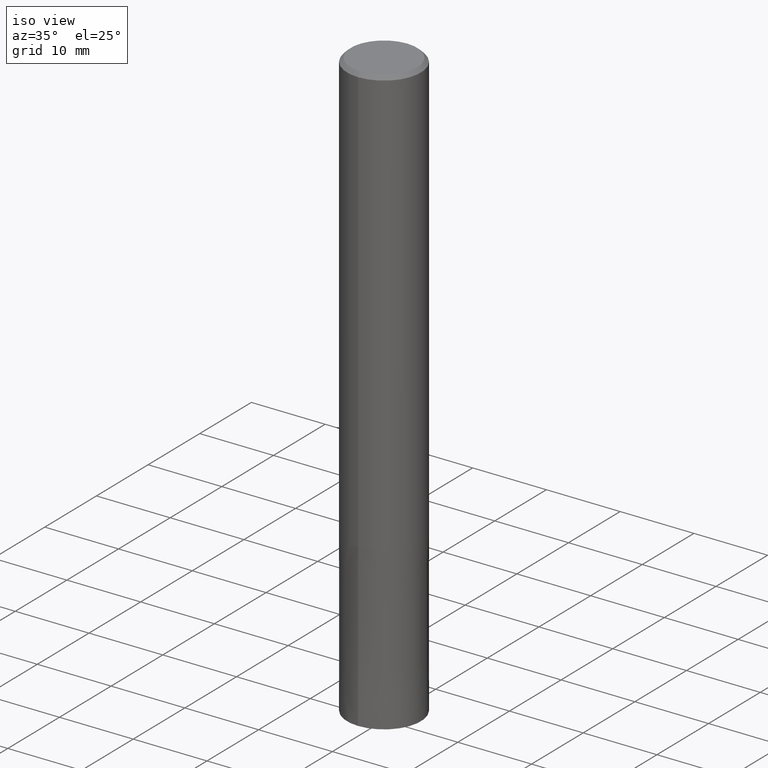
[diagram: clean part render]
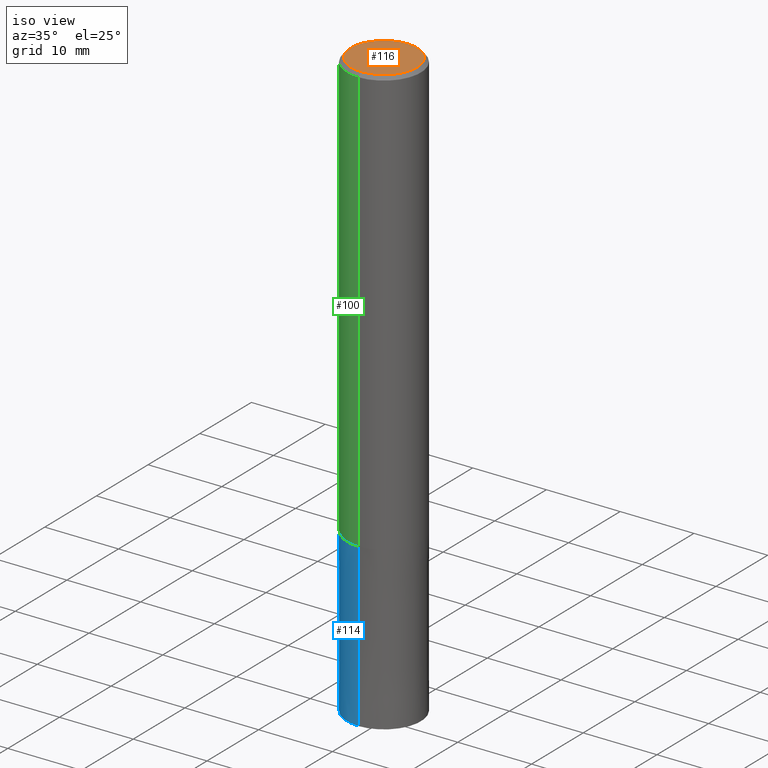
[diagram: same view with three faces highlighted in distinct colors, each labeled with its STEP entity id]
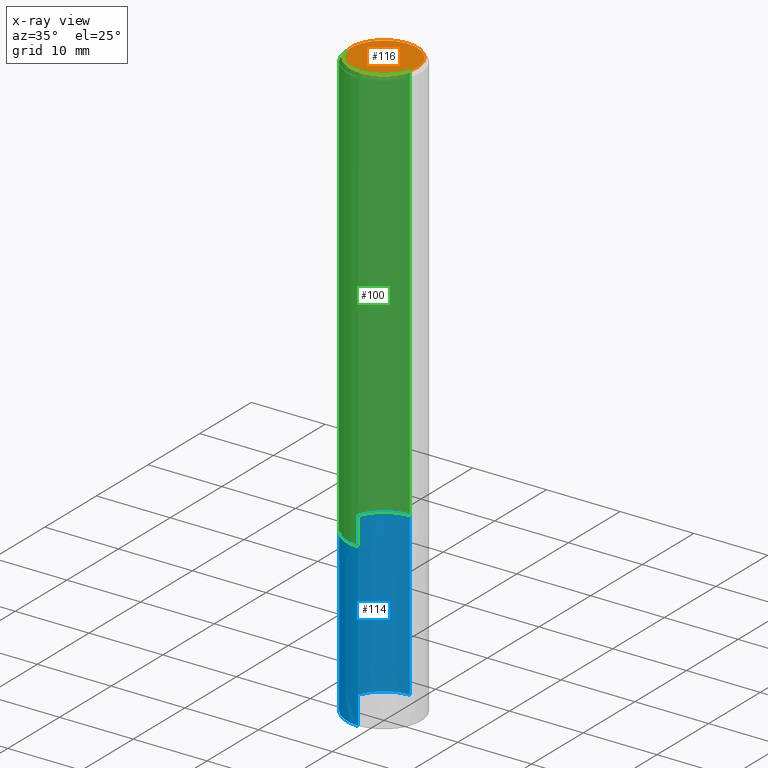
[diagram: x-ray of the same camera — body ghosted, the three highlighted faces saturated]
A machine part, iso view with three faces highlighted in distinct colors.
The next image is the same camera in x-ray (body ghosted, the three faces saturated) — at least one of them is partly hidden behind the body in this view.
Their STEP definitions:

[orange] entity #116 — the highlighted planar face has unit normal (-0, 0, 1).
#66=EDGE_CURVE('',#104,#106,#154,.T.);
#104=VERTEX_POINT('',#196);
#106=VERTEX_POINT('',#198);
#116=ADVANCED_FACE('',(#210),#211,.T.);
#130=EDGE_CURVE('',#106,#104,#228,.T.);
#154=CIRCLE('',#248,4.5);
#196=CARTESIAN_POINT('',(0.0,4.5,0.0));
#198=CARTESIAN_POINT('',(5.5107285922007E-016,-4.5,0.0));
#210=FACE_OUTER_BOUND('',#318,.T.);
#211=PLANE('',#319);
#228=CIRCLE('',#337,4.5);
#248=AXIS2_PLACEMENT_3D('',#344,#345,#346);
#318=EDGE_LOOP('',(#410,#411));
#319=AXIS2_PLACEMENT_3D('',#412,#413,#414);
#337=AXIS2_PLACEMENT_3D('',#441,#442,#443);
#344=CARTESIAN_POINT('',(0.0,0.0,0.0));
#345=DIRECTION('',(0.0,0.0,-1.0));
#346=DIRECTION('',(0.0,1.0,0.0));
#410=ORIENTED_EDGE('',*,*,#66,.F.);
#411=ORIENTED_EDGE('',*,*,#130,.F.);
#412=CARTESIAN_POINT('',(0.0,2.25,0.0));
#413=DIRECTION('',(-0.0,0.0,1.0));
#414=DIRECTION('',(0.0,-1.0,0.0));
#441=CARTESIAN_POINT('',(0.0,0.0,0.0));
#442=DIRECTION('',(0.0,0.0,-1.0));
#443=DIRECTION('',(0.0,1.0,0.0));

[blue] entity #114 — the highlighted conical surface has half-angle 0 deg.
#68=EDGE_CURVE('',#82,#98,#156,.T.);
#70=EDGE_CURVE('',#124,#112,#158,.T.);
#82=VERTEX_POINT('',#172);
#90=EDGE_CURVE('',#98,#124,#180,.T.);
#98=VERTEX_POINT('',#189);
#112=VERTEX_POINT('',#205);
#114=ADVANCED_FACE('',(#207),#208,.T.);
#118=EDGE_CURVE('',#82,#112,#213,.T.);
#124=VERTEX_POINT('',#221);
#156=LINE('',#251,#252);
#158=LINE('',#255,#256);
#172=CARTESIAN_POINT('',(6.12303176911189E-016,-5.0,-80.0));
#180=CIRCLE('',#286,4.9999);
#189=CARTESIAN_POINT('',(6.1229093084765E-016,-4.9999,-58.0));
#205=CARTESIAN_POINT('',(0.0,5.0,-80.0));
#207=FACE_OUTER_BOUND('',#315,.T.);
#208=CONICAL_SURFACE('',#316,4.99995,4.54545454541265E-006);
#213=CIRCLE('',#322,5.0);
#221=CARTESIAN_POINT('',(0.0,4.9999,-58.0));
#251=CARTESIAN_POINT('',(6.12297053879419E-016,-4.99995,-69.0));
#252=VECTOR('',#347,1.0);
#255=CARTESIAN_POINT('',(-6.12297053879419E-016,4.99995,-69.0));
#256=VECTOR('',#348,1.0);
#286=AXIS2_PLACEMENT_3D('',#368,#369,#370);
#315=EDGE_LOOP('',(#402,#403,#404,#405));
#316=AXIS2_PLACEMENT_3D('',#406,#407,#408);
#322=AXIS2_PLACEMENT_3D('',#415,#416,#417);
#347=DIRECTION('',(-5.56639251730396E-022,4.545454545397E-006,0.999999999989669));
#348=DIRECTION('',(-5.56639251730397E-022,4.545454545397E-006,-0.999999999989669));
#368=CARTESIAN_POINT('',(0.0,0.0,-58.0));
#369=DIRECTION('',(0.0,0.0,-1.0));
#370=DIRECTION('',(0.0,1.0,0.0));
#402=ORIENTED_EDGE('',*,*,#70,.T.);
#403=ORIENTED_EDGE('',*,*,#118,.F.);
#404=ORIENTED_EDGE('',*,*,#68,.T.);
#405=ORIENTED_EDGE('',*,*,#90,.T.);
#406=CARTESIAN_POINT('',(0.0,0.0,-69.0));
#407=DIRECTION('',(0.0,-0.0,-1.0));
#408=DIRECTION('',(0.0,1.0,0.0));
#415=CARTESIAN_POINT('',(0.0,0.0,-80.0));
#416=DIRECTION('',(0.0,0.0,-1.0));
#417=DIRECTION('',(0.0,1.0,0.0));

[green] entity #100 — the highlighted cylindrical surface (partial cylindrical patch) has radius 5 mm, axis along (-0, -0, 1).
#62=EDGE_CURVE('',#108,#86,#150,.T.);
#64=EDGE_CURVE('',#94,#108,#152,.T.);
#78=EDGE_CURVE('',#84,#86,#166,.T.);
#84=VERTEX_POINT('',#174);
#86=VERTEX_POINT('',#176);
#88=EDGE_CURVE('',#84,#94,#178,.T.);
#94=VERTEX_POINT('',#185);
#100=ADVANCED_FACE('',(#191),#192,.T.);
#108=VERTEX_POINT('',#200);
#150=LINE('',#241,#242);
#152=CIRCLE('',#245,5.0);
#166=CIRCLE('',#269,5.0);
#174=CARTESIAN_POINT('',(6.12303176911189E-016,-5.0,-58.0));
#176=CARTESIAN_POINT('',(0.0,5.0,-58.0));
#178=LINE('',#282,#283);
#185=CARTESIAN_POINT('',(6.12303176911189E-016,-5.0,-0.5));
#191=FACE_OUTER_BOUND('',#298,.T.);
#192=CYLINDRICAL_SURFACE('',#299,5.0);
#200=CARTESIAN_POINT('',(0.0,5.0,-0.5));
#241=CARTESIAN_POINT('',(-6.12303176911189E-016,5.0,-29.25));
#242=VECTOR('',#340,1.0);
#245=AXIS2_PLACEMENT_3D('',#341,#342,#343);
#269=AXIS2_PLACEMENT_3D('',#356,#357,#358);
#282=CARTESIAN_POINT('',(6.12303176911189E-016,-5.0,-29.25));
#283=VECTOR('',#367,1.0);
#298=EDGE_LOOP('',(#383,#384,#385,#386));
#299=AXIS2_PLACEMENT_3D('',#387,#388,#389);
#340=DIRECTION('',(0.0,0.0,-1.0));
#341=CARTESIAN_POINT('',(0.0,0.0,-0.5));
#342=DIRECTION('',(0.0,0.0,-1.0));
#343=DIRECTION('',(0.0,1.0,0.0));
#356=CARTESIAN_POINT('',(0.0,0.0,-58.0));
#357=DIRECTION('',(0.0,0.0,-1.0));
#358=DIRECTION('',(0.0,1.0,0.0));
#367=DIRECTION('',(-0.0,-0.0,1.0));
#383=ORIENTED_EDGE('',*,*,#62,.T.);
#384=ORIENTED_EDGE('',*,*,#78,.F.);
#385=ORIENTED_EDGE('',*,*,#88,.T.);
#386=ORIENTED_EDGE('',*,*,#64,.T.);
#387=CARTESIAN_POINT('',(0.0,0.0,-29.25));
#388=DIRECTION('',(-0.0,-0.0,1.0));
#389=DIRECTION('',(0.0,1.0,0.0));